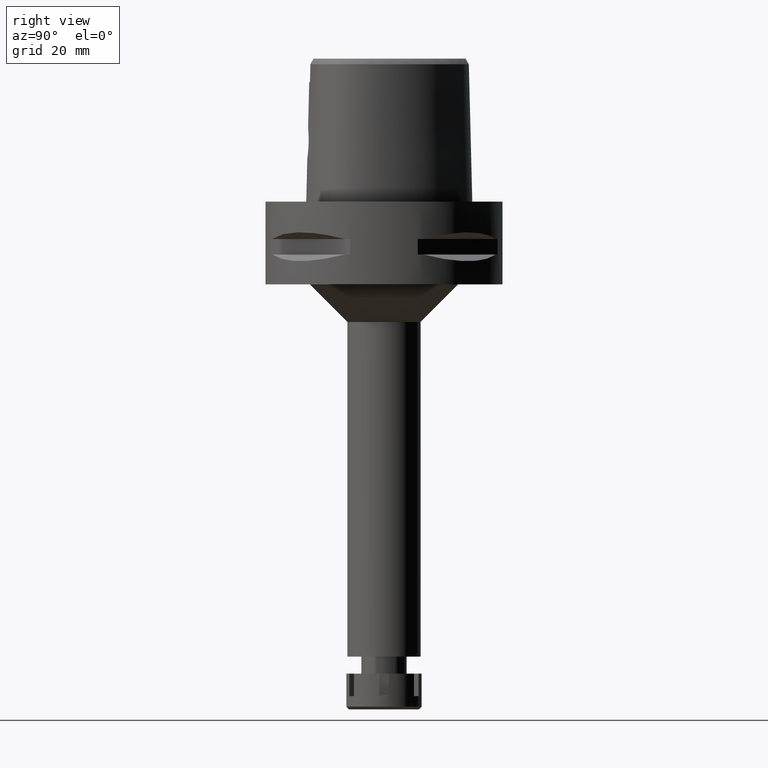
[diagram: clean part render]
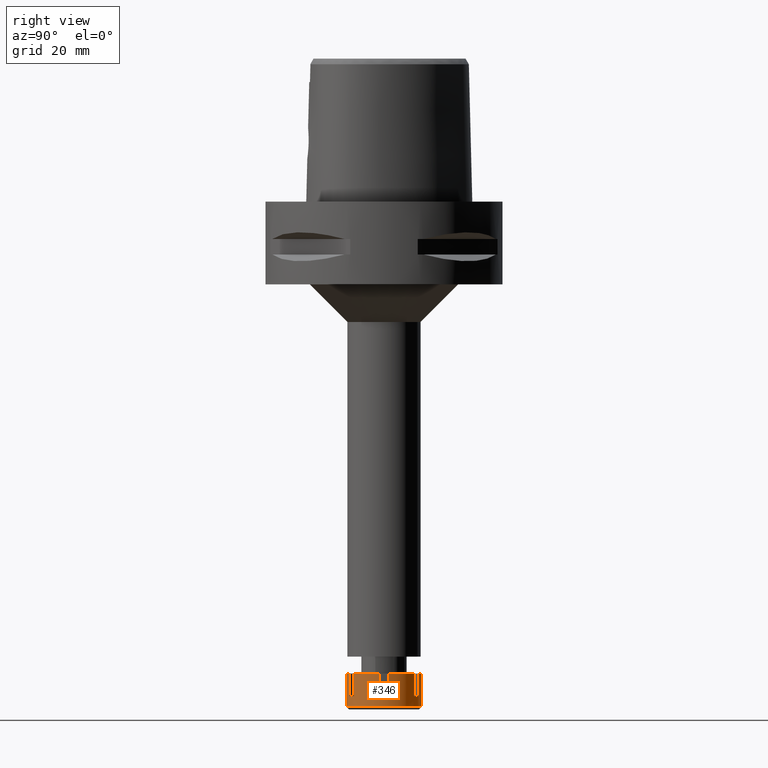
[diagram: same view with one face highlighted and labeled with its STEP entity id]
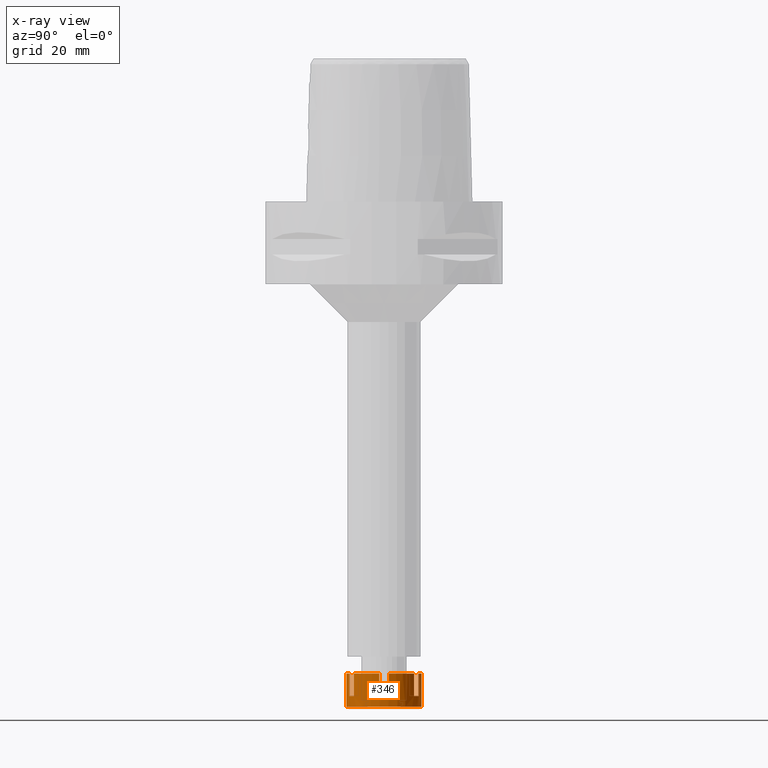
[diagram: x-ray of the same camera — body ghosted, the highlighted face saturated]
A machine part, right view. The second image highlights one B-rep face of the part: STEP entity #346.
The next image is the same camera in x-ray: the body ghosted, the highlighted face saturated — about 0% of this face is hidden behind the body in this view.
In plain terms, the highlighted cylindrical surface (partial cylindrical patch) has radius 10 mm, axis along (0, 0, -1).
Its self-contained STEP definition (entity closure, byte-faithful):
#87 = CIRCLE ( 'NONE', #2520, 9.999999999999998224 ) ;
#89 = CARTESIAN_POINT ( 'NONE',  ( 3.878251953514999961, -9.217329428041999506, -6.000000000000000000 ) ) ;
#118 = CARTESIAN_POINT ( 'NONE',  ( 9.921567416491999580, -1.250000000000000000, -6.000000000000000000 ) ) ;
#201 = EDGE_LOOP ( 'NONE', ( #4244, #5210, #4306, #2792, #2773, #3752, #3587, #2973, #4256, #3858, #2627, #2863, #1893, #3604, #303, #5501 ) ) ;
#203 = CARTESIAN_POINT ( 'NONE',  ( 0.0000000000000000000, 0.0000000000000000000, -6.000000000000000000 ) ) ;
#222 = CARTESIAN_POINT ( 'NONE',  ( 0.0000000000000000000, 0.0000000000000000000, -8.800000000000000711 ) ) ;
#238 = LINE ( 'NONE', #1944, #5172 ) ;
#303 = ORIENTED_EDGE ( 'NONE', *, *, #5333, .F. ) ;
#331 = EDGE_CURVE ( 'NONE', #2232, #3496, #3275, .T. ) ;
#346 = ADVANCED_FACE ( 'NONE', ( #5416 ), #1606, .T. ) ;
#359 = CARTESIAN_POINT ( 'NONE',  ( 6.043315462977000507, -7.967329428041999506, 0.0000000000000000000 ) ) ;
#364 = EDGE_CURVE ( 'NONE', #2068, #2628, #238, .T. ) ;
#495 = DIRECTION ( 'NONE',  ( 0.3878251953515154948, -0.9217329428042371209, 0.0000000000000000000 ) ) ;
#513 = DIRECTION ( 'NONE',  ( 0.9921567416492210745, -0.1250000000000026090, 0.0000000000000000000 ) ) ;
#533 = EDGE_CURVE ( 'NONE', #3692, #3430, #929, .T. ) ;
#750 = CARTESIAN_POINT ( 'NONE',  ( 3.878251953514999961, -9.217329428041999506, 0.0000000000000000000 ) ) ;
#752 = CARTESIAN_POINT ( 'NONE',  ( 0.0000000000000000000, -10.00000000000000000, -8.800000000000000711 ) ) ;
#753 = EDGE_CURVE ( 'NONE', #2068, #3245, #2926, .T. ) ;
#778 = DIRECTION ( 'NONE',  ( 0.0000000000000000000, 1.000000000000000000, 0.0000000000000000000 ) ) ;
#786 = CARTESIAN_POINT ( 'NONE',  ( 9.921567416491999580, -1.250000000000000000, 0.0000000000000000000 ) ) ;
#803 = CARTESIAN_POINT ( 'NONE',  ( 0.0000000000000000000, 0.0000000000000000000, 0.0000000000000000000 ) ) ;
#872 = DIRECTION ( 'NONE',  ( 0.0000000000000000000, 0.0000000000000000000, -1.000000000000000000 ) ) ;
#896 = DIRECTION ( 'NONE',  ( 0.0000000000000000000, 0.0000000000000000000, -1.000000000000000000 ) ) ;
#904 = EDGE_CURVE ( 'NONE', #3692, #4304, #4350, .T. ) ;
#909 = DIRECTION ( 'NONE',  ( 0.0000000000000000000, 0.0000000000000000000, -1.000000000000000000 ) ) ;
#929 = LINE ( 'NONE', #1014, #2466 ) ;
#941 = VECTOR ( 'NONE', #896, 1000.000000000000000 ) ;
#967 = CIRCLE ( 'NONE', #2867, 9.999999999999998224 ) ;
#969 = CARTESIAN_POINT ( 'NONE',  ( 0.0000000000000000000, 0.0000000000000000000, 0.0000000000000000000 ) ) ;
#991 = VERTEX_POINT ( 'NONE', #750 ) ;
#993 = VERTEX_POINT ( 'NONE', #2489 ) ;
#1014 = CARTESIAN_POINT ( 'NONE',  ( 0.0000000000000000000, 10.00000000000000000, 0.0000000000000000000 ) ) ;
#1027 = DIRECTION ( 'NONE',  ( 0.9921567416492210745, 0.1250000000000026090, 0.0000000000000000000 ) ) ;
#1080 = DIRECTION ( 'NONE',  ( 0.0000000000000000000, 0.0000000000000000000, -1.000000000000000000 ) ) ;
#1099 = EDGE_CURVE ( 'NONE', #993, #2628, #87, .T. ) ;
#1309 = CARTESIAN_POINT ( 'NONE',  ( 0.0000000000000000000, 0.0000000000000000000, 0.0000000000000000000 ) ) ;
#1461 = AXIS2_PLACEMENT_3D ( 'NONE', #203, #2794, #3653 ) ;
#1606 = CYLINDRICAL_SURFACE ( 'NONE', #5072, 10.00000000000000000 ) ;
#1669 = CARTESIAN_POINT ( 'NONE',  ( 0.0000000000000000000, -10.00000000000000000, 0.0000000000000000000 ) ) ;
#1698 = LINE ( 'NONE', #786, #4987 ) ;
#1822 = DIRECTION ( 'NONE',  ( 0.0000000000000000000, 0.0000000000000000000, -1.000000000000000000 ) ) ;
#1893 = ORIENTED_EDGE ( 'NONE', *, *, #533, .F. ) ;
#1921 = CIRCLE ( 'NONE', #3008, 9.999999999999998224 ) ;
#1944 = CARTESIAN_POINT ( 'NONE',  ( 6.043315462977000507, -7.967329428041999506, -6.000000000000000000 ) ) ;
#2031 = DIRECTION ( 'NONE',  ( 0.3878251953516005379, 0.9217329428042011497, 0.0000000000000000000 ) ) ;
#2068 = VERTEX_POINT ( 'NONE', #3207 ) ;
#2097 = LINE ( 'NONE', #3820, #2588 ) ;
#2161 = CIRCLE ( 'NONE', #5311, 10.00000000000000000 ) ;
#2164 = CARTESIAN_POINT ( 'NONE',  ( 6.043315462977000507, 7.967329428041999506, 0.0000000000000000000 ) ) ;
#2174 = CARTESIAN_POINT ( 'NONE',  ( 0.0000000000000000000, 0.0000000000000000000, 0.0000000000000000000 ) ) ;
#2232 = VERTEX_POINT ( 'NONE', #5283 ) ;
#2373 = DIRECTION ( 'NONE',  ( 0.0000000000000000000, 0.0000000000000000000, -1.000000000000000000 ) ) ;
#2466 = VECTOR ( 'NONE', #1822, 1000.000000000000000 ) ;
#2489 = CARTESIAN_POINT ( 'NONE',  ( 9.921567416491999580, -1.250000000000000000, 0.0000000000000000000 ) ) ;
#2493 = EDGE_CURVE ( 'NONE', #4859, #3430, #2161, .T. ) ;
#2513 = VERTEX_POINT ( 'NONE', #4665 ) ;
#2520 = AXIS2_PLACEMENT_3D ( 'NONE', #2174, #4819, #513 ) ;
#2531 = CARTESIAN_POINT ( 'NONE',  ( 6.043315462977000507, 7.967329428041999506, -6.000000000000000000 ) ) ;
#2558 = AXIS2_PLACEMENT_3D ( 'NONE', #803, #5052, #778 ) ;
#2580 = CARTESIAN_POINT ( 'NONE',  ( 0.0000000000000000000, 10.00000000000000000, 0.0000000000000000000 ) ) ;
#2588 = VECTOR ( 'NONE', #4979, 1000.000000000000000 ) ;
#2627 = ORIENTED_EDGE ( 'NONE', *, *, #4278, .T. ) ;
#2628 = VERTEX_POINT ( 'NONE', #359 ) ;
#2689 = DIRECTION ( 'NONE',  ( 0.0000000000000000000, 0.0000000000000000000, -1.000000000000000000 ) ) ;
#2746 = EDGE_CURVE ( 'NONE', #991, #3245, #3467, .T. ) ;
#2773 = ORIENTED_EDGE ( 'NONE', *, *, #3699, .F. ) ;
#2792 = ORIENTED_EDGE ( 'NONE', *, *, #5426, .T. ) ;
#2794 = DIRECTION ( 'NONE',  ( 0.0000000000000000000, 0.0000000000000000000, -1.000000000000000000 ) ) ;
#2863 = ORIENTED_EDGE ( 'NONE', *, *, #2493, .T. ) ;
#2867 = AXIS2_PLACEMENT_3D ( 'NONE', #4454, #3579, #1027 ) ;
#2926 = CIRCLE ( 'NONE', #1461, 9.999999999999998224 ) ;
#2973 = ORIENTED_EDGE ( 'NONE', *, *, #753, .T. ) ;
#3008 = AXIS2_PLACEMENT_3D ( 'NONE', #1309, #3034, #4781 ) ;
#3034 = DIRECTION ( 'NONE',  ( 0.0000000000000000000, 0.0000000000000000000, -1.000000000000000000 ) ) ;
#3207 = CARTESIAN_POINT ( 'NONE',  ( 6.043315462977000507, -7.967329428041999506, -6.000000000000000000 ) ) ;
#3213 = VERTEX_POINT ( 'NONE', #118 ) ;
#3238 = VECTOR ( 'NONE', #872, 1000.000000000000000 ) ;
#3245 = VERTEX_POINT ( 'NONE', #89 ) ;
#3256 = EDGE_CURVE ( 'NONE', #4292, #3496, #4816, .T. ) ;
#3275 = CIRCLE ( 'NONE', #4529, 10.00000000000000000 ) ;
#3316 = EDGE_CURVE ( 'NONE', #2513, #3525, #5209, .T. ) ;
#3332 = CARTESIAN_POINT ( 'NONE',  ( 0.0000000000000000000, 0.0000000000000000000, 0.0000000000000000000 ) ) ;
#3430 = VERTEX_POINT ( 'NONE', #4960 ) ;
#3467 = LINE ( 'NONE', #5194, #3686 ) ;
#3496 = VERTEX_POINT ( 'NONE', #2531 ) ;
#3506 = EDGE_CURVE ( 'NONE', #4292, #3525, #1921, .T. ) ;
#3525 = VERTEX_POINT ( 'NONE', #4889 ) ;
#3579 = DIRECTION ( 'NONE',  ( 0.0000000000000000000, 0.0000000000000000000, -1.000000000000000000 ) ) ;
#3587 = ORIENTED_EDGE ( 'NONE', *, *, #364, .F. ) ;
#3604 = ORIENTED_EDGE ( 'NONE', *, *, #904, .T. ) ;
#3653 = DIRECTION ( 'NONE',  ( 0.6043315462976971419, -0.7967329428041960426, 0.0000000000000000000 ) ) ;
#3664 = DIRECTION ( 'NONE',  ( 0.0000000000000000000, 0.0000000000000000000, 1.000000000000000000 ) ) ;
#3686 = VECTOR ( 'NONE', #909, 1000.000000000000000 ) ;
#3692 = VERTEX_POINT ( 'NONE', #2580 ) ;
#3699 = EDGE_CURVE ( 'NONE', #993, #3213, #1698, .T. ) ;
#3706 = VERTEX_POINT ( 'NONE', #1669 ) ;
#3752 = ORIENTED_EDGE ( 'NONE', *, *, #1099, .T. ) ;
#3820 = CARTESIAN_POINT ( 'NONE',  ( 3.878251953516000050, 9.217329428041999506, -6.000000000000000000 ) ) ;
#3858 = ORIENTED_EDGE ( 'NONE', *, *, #4731, .T. ) ;
#3886 = DIRECTION ( 'NONE',  ( 0.0000000000000000000, 0.0000000000000000000, 1.000000000000000000 ) ) ;
#3989 = DIRECTION ( 'NONE',  ( 0.0000000000000000000, 0.0000000000000000000, 1.000000000000000000 ) ) ;
#4016 = DIRECTION ( 'NONE',  ( 0.0000000000000000000, -1.000000000000000000, 0.0000000000000000000 ) ) ;
#4238 = VECTOR ( 'NONE', #3886, 1000.000000000000000 ) ;
#4244 = ORIENTED_EDGE ( 'NONE', *, *, #3256, .F. ) ;
#4256 = ORIENTED_EDGE ( 'NONE', *, *, #2746, .F. ) ;
#4278 = EDGE_CURVE ( 'NONE', #3706, #4859, #4677, .T. ) ;
#4280 = CARTESIAN_POINT ( 'NONE',  ( 9.921567416491999580, 1.250000000000000000, -6.000000000000000000 ) ) ;
#4292 = VERTEX_POINT ( 'NONE', #2164 ) ;
#4304 = VERTEX_POINT ( 'NONE', #4734 ) ;
#4306 = ORIENTED_EDGE ( 'NONE', *, *, #3316, .F. ) ;
#4350 = CIRCLE ( 'NONE', #2558, 10.00000000000000000 ) ;
#4360 = CARTESIAN_POINT ( 'NONE',  ( 6.043315462977000507, 7.967329428041999506, 0.0000000000000000000 ) ) ;
#4454 = CARTESIAN_POINT ( 'NONE',  ( 0.0000000000000000000, 0.0000000000000000000, -6.000000000000000000 ) ) ;
#4529 = AXIS2_PLACEMENT_3D ( 'NONE', #5361, #1080, #2031 ) ;
#4665 = CARTESIAN_POINT ( 'NONE',  ( 9.921567416491999580, 1.250000000000000000, -6.000000000000000000 ) ) ;
#4677 = LINE ( 'NONE', #5552, #941 ) ;
#4731 = EDGE_CURVE ( 'NONE', #991, #3706, #5016, .T. ) ;
#4734 = CARTESIAN_POINT ( 'NONE',  ( 3.878251953516000050, 9.217329428041999506, 0.0000000000000000000 ) ) ;
#4781 = DIRECTION ( 'NONE',  ( 0.6043315462976971419, 0.7967329428041960426, 0.0000000000000000000 ) ) ;
#4816 = LINE ( 'NONE', #4360, #3238 ) ;
#4819 = DIRECTION ( 'NONE',  ( 0.0000000000000000000, 0.0000000000000000000, -1.000000000000000000 ) ) ;
#4859 = VERTEX_POINT ( 'NONE', #752 ) ;
#4889 = CARTESIAN_POINT ( 'NONE',  ( 9.921567416491999580, 1.250000000000000000, 0.0000000000000000000 ) ) ;
#4960 = CARTESIAN_POINT ( 'NONE',  ( 0.0000000000000000000, 10.00000000000000000, -8.800000000000000711 ) ) ;
#4970 = DIRECTION ( 'NONE',  ( 0.0000000000000000000, -1.000000000000000000, 0.0000000000000000000 ) ) ;
#4979 = DIRECTION ( 'NONE',  ( 0.0000000000000000000, 0.0000000000000000000, 1.000000000000000000 ) ) ;
#4987 = VECTOR ( 'NONE', #5145, 1000.000000000000000 ) ;
#5016 = CIRCLE ( 'NONE', #5280, 10.00000000000000000 ) ;
#5052 = DIRECTION ( 'NONE',  ( 0.0000000000000000000, 0.0000000000000000000, -1.000000000000000000 ) ) ;
#5072 = AXIS2_PLACEMENT_3D ( 'NONE', #3332, #2373, #4970 ) ;
#5145 = DIRECTION ( 'NONE',  ( 0.0000000000000000000, 0.0000000000000000000, -1.000000000000000000 ) ) ;
#5172 = VECTOR ( 'NONE', #3664, 1000.000000000000000 ) ;
#5194 = CARTESIAN_POINT ( 'NONE',  ( 3.878251953514999961, -9.217329428041999506, 0.0000000000000000000 ) ) ;
#5209 = LINE ( 'NONE', #4280, #4238 ) ;
#5210 = ORIENTED_EDGE ( 'NONE', *, *, #3506, .T. ) ;
#5280 = AXIS2_PLACEMENT_3D ( 'NONE', #969, #2689, #495 ) ;
#5283 = CARTESIAN_POINT ( 'NONE',  ( 3.878251953516000050, 9.217329428041999506, -6.000000000000000000 ) ) ;
#5311 = AXIS2_PLACEMENT_3D ( 'NONE', #222, #3989, #4016 ) ;
#5333 = EDGE_CURVE ( 'NONE', #2232, #4304, #2097, .T. ) ;
#5361 = CARTESIAN_POINT ( 'NONE',  ( 0.0000000000000000000, 0.0000000000000000000, -6.000000000000000000 ) ) ;
#5416 = FACE_OUTER_BOUND ( 'NONE', #201, .T. ) ;
#5426 = EDGE_CURVE ( 'NONE', #2513, #3213, #967, .T. ) ;
#5501 = ORIENTED_EDGE ( 'NONE', *, *, #331, .T. ) ;
#5552 = CARTESIAN_POINT ( 'NONE',  ( 0.0000000000000000000, -10.00000000000000000, 0.0000000000000000000 ) ) ;